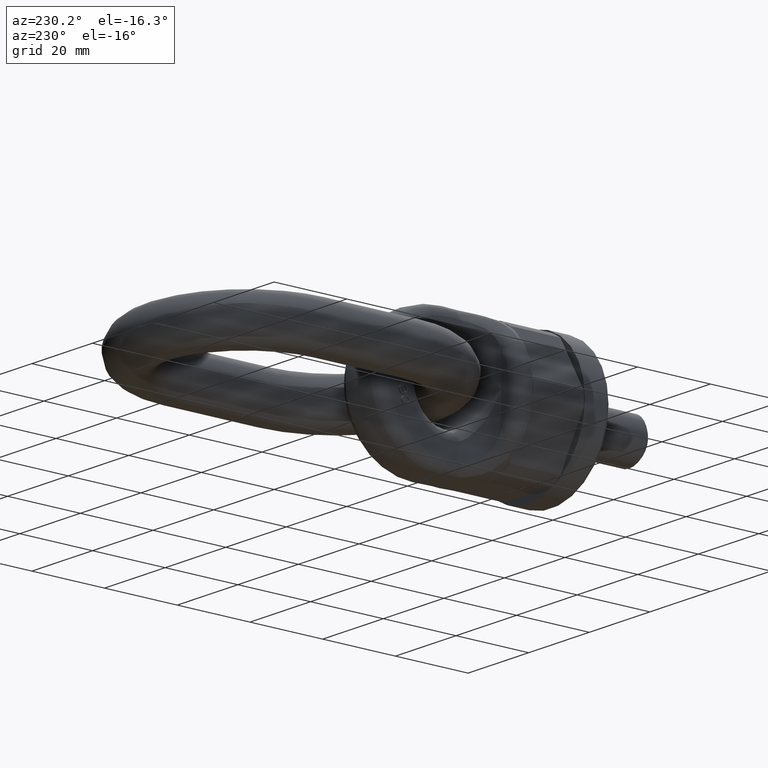
[diagram: clean part render]
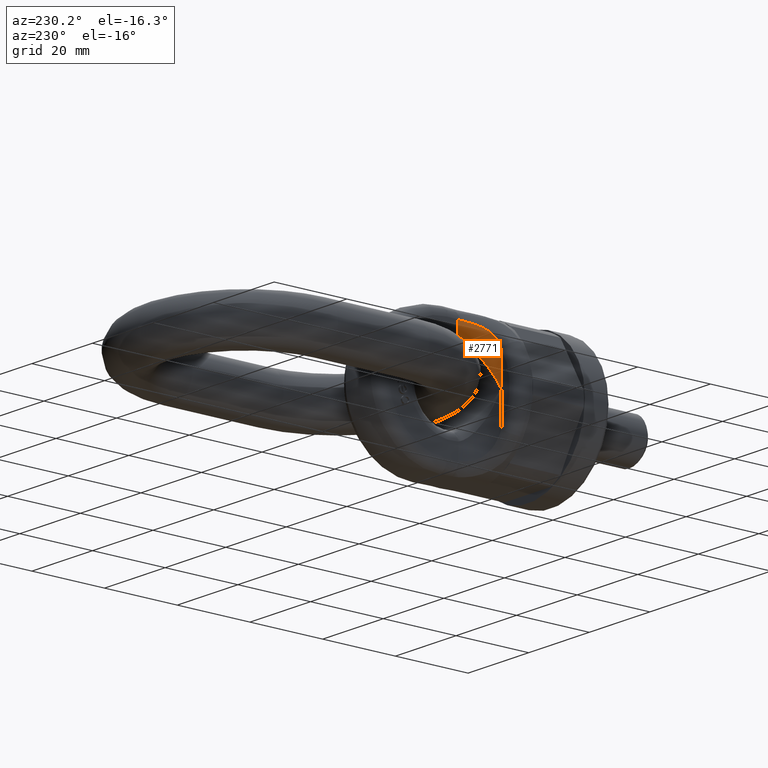
[diagram: same view with one face highlighted and labeled with its STEP entity id]
A machine part, auxiliary view. The second image highlights one B-rep face of the part: STEP entity #2771.
In plain terms, the highlighted cylindrical surface (edge-blend (fillet) strip) has radius 6.5 mm, axis along (-0, 0, 1).
Its self-contained STEP definition (entity closure, byte-faithful):
#536=B_SPLINE_CURVE_WITH_KNOTS('',3,(#8580,#8581,#8582,#8583,#8584,#8585,
#8586,#8587),.UNSPECIFIED.,.F.,.F.,(4,2,2,4),(0.,0.25,0.5,1.),
 .UNSPECIFIED.);
#537=B_SPLINE_CURVE_WITH_KNOTS('',3,(#8590,#8591,#8592,#8593,#8594,#8595,
#8596,#8597,#8598,#8599),.UNSPECIFIED.,.F.,.F.,(4,2,2,2,4),(0.,0.25,0.5,
0.75,1.),.UNSPECIFIED.);
#1914=FACE_OUTER_BOUND('',#3223,.T.);
#2027=CYLINDRICAL_SURFACE('',#5728,6.5);
#2180=LINE('',#8375,#2482);
#2208=LINE('',#8588,#2510);
#2482=VECTOR('',#6254,1.);
#2510=VECTOR('',#6288,1.);
#2771=ADVANCED_FACE('',(#1914),#2027,.F.);
#3223=EDGE_LOOP('',(#4070,#4071,#4072,#4073));
#4070=ORIENTED_EDGE('',*,*,#5287,.F.);
#4071=ORIENTED_EDGE('',*,*,#5340,.T.);
#4072=ORIENTED_EDGE('',*,*,#5341,.F.);
#4073=ORIENTED_EDGE('',*,*,#5342,.T.);
#4662=VERTEX_POINT('',#7123);
#4783=VERTEX_POINT('',#8374);
#4784=VERTEX_POINT('',#8376);
#4834=VERTEX_POINT('',#8589);
#5287=EDGE_CURVE('',#4783,#4784,#2180,.T.);
#5340=EDGE_CURVE('',#4783,#4662,#536,.T.);
#5341=EDGE_CURVE('',#4834,#4662,#2208,.T.);
#5342=EDGE_CURVE('',#4834,#4784,#537,.T.);
#5728=AXIS2_PLACEMENT_3D('',#8600,#6289,#6290);
#6254=DIRECTION('',(-2.34291072916505E-15,0.,1.));
#6288=DIRECTION('',(2.34291072916505E-15,0.,-1.));
#6289=DIRECTION('',(-2.34291072916505E-15,0.,1.));
#6290=DIRECTION('',(1.,0.,2.1350442781253E-15));
#7123=CARTESIAN_POINT('',(-13.,25.,-3.04578394791456E-14));
#8374=CARTESIAN_POINT('',(-6.50000000000002,31.5,11.3247516529061));
#8375=CARTESIAN_POINT('',(-6.50000000000004,31.5,17.5879640283967));
#8376=CARTESIAN_POINT('',(-6.50000000000003,31.5,15.5261697642408));
#8580=CARTESIAN_POINT('',(-6.50000000000002,31.5,11.3247516529061));
#8581=CARTESIAN_POINT('',(-6.50000000000002,30.225828042753,10.995870035153));
#8582=CARTESIAN_POINT('',(-6.8625540083873,29.1521367100866,10.2479499623017));
#8583=CARTESIAN_POINT('',(-7.80904231767959,27.4707738126975,8.50219585972225));
#8584=CARTESIAN_POINT('',(-8.39089552933358,26.849542187957,7.51255852914359));
#8585=CARTESIAN_POINT('',(-10.2574544218147,25.3999302230208,4.40371109912023));
#8586=CARTESIAN_POINT('',(-11.6363297239822,25.,2.19283911534947));
#8587=CARTESIAN_POINT('',(-13.,25.,-3.04578394791456E-14));
#8588=CARTESIAN_POINT('',(-13.,25.,-17.5879640283967));
#8589=CARTESIAN_POINT('',(-13.,25.,8.75457788886272));
#8590=CARTESIAN_POINT('',(-13.,25.,8.75457788886272));
#8591=CARTESIAN_POINT('',(-12.543234206899,25.,9.74589353869672));
#8592=CARTESIAN_POINT('',(-12.001789199936,25.0431297891709,10.6829116689343));
#8593=CARTESIAN_POINT('',(-10.7214827336039,25.3766057788517,12.4179509670953));
#8594=CARTESIAN_POINT('',(-9.98451250766773,25.6715979797211,13.1955476487339));
#8595=CARTESIAN_POINT('',(-8.51154745203598,26.7128057642207,14.4120554955105));
#8596=CARTESIAN_POINT('',(-7.79349446904808,27.4689694652163,14.8355156095421));
#8597=CARTESIAN_POINT('',(-6.78772173770688,29.317225204463,15.3610208751525));
#8598=CARTESIAN_POINT('',(-6.50000000000003,30.4007705916971,15.4840813751898));
#8599=CARTESIAN_POINT('',(-6.50000000000003,31.5,15.5261697642409));
#8600=CARTESIAN_POINT('',(-12.9999999999999,31.5,-20.9));